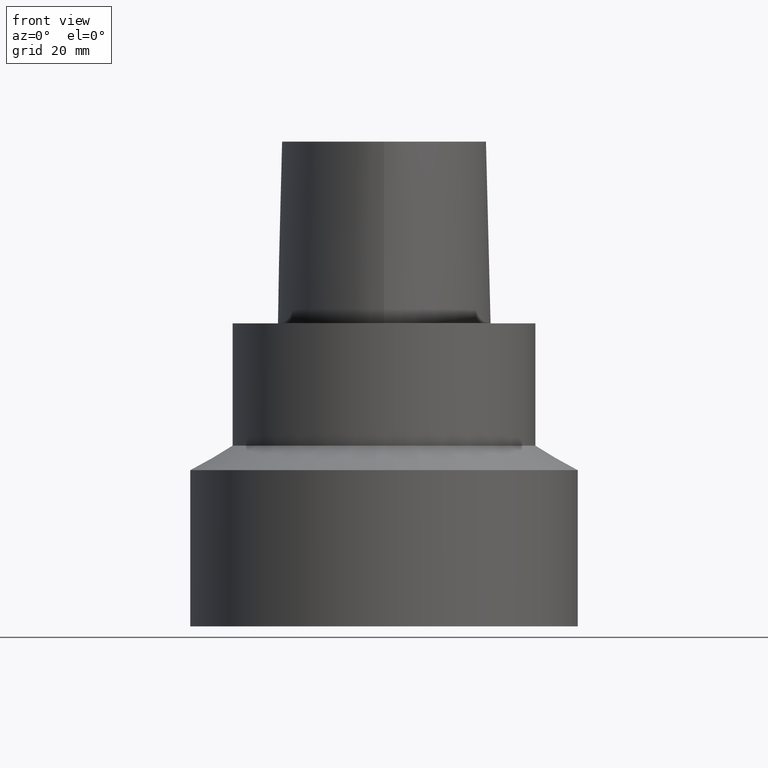
[diagram: clean part render]
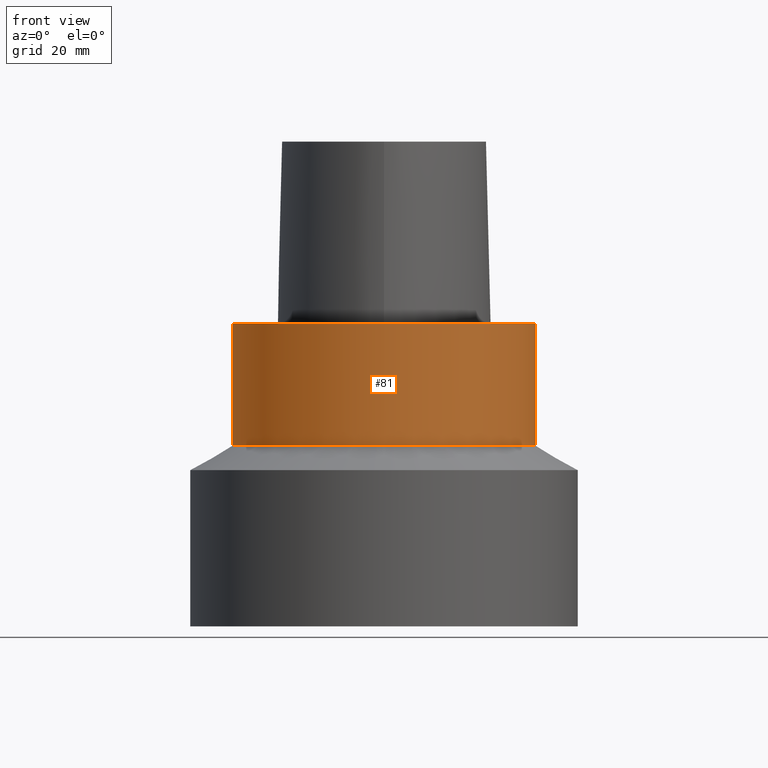
[diagram: same view with one face highlighted and labeled with its STEP entity id]
A machine part, front view. The second image highlights one B-rep face of the part: STEP entity #81.
In plain terms, the highlighted cylindrical surface (bore or boss wall) has radius 24.99 mm, axis along (-0, -0, 1).
Its self-contained STEP definition (entity closure, byte-faithful):
#81=ADVANCED_FACE('',(#98,#99),#100,.T.);
#98=FACE_BOUND('',#499,.T.);
#99=FACE_BOUND('',#500,.T.);
#100=CYLINDRICAL_SURFACE('',#501,24.99);
#499=EDGE_LOOP('',(#529));
#500=EDGE_LOOP('',(#530));
#501=AXIS2_PLACEMENT_3D('',#531,#532,#533);
#529=ORIENTED_EDGE('',*,*,#538,.F.);
#530=ORIENTED_EDGE('',*,*,#540,.T.);
#531=CARTESIAN_POINT('',(6.17626275744128E-016,1.23525255148826E-015,-10.08660254));
#532=DIRECTION('',(-6.12323399573677E-017,-1.22464679914735E-016,1.0));
#533=DIRECTION('',(-1.23259516440783E-032,1.0,1.22464679914735E-016));
#538=EDGE_CURVE('',#548,#548,#549,.T.);
#540=EDGE_CURVE('',#552,#552,#553,.T.);
#548=VERTEX_POINT('',#707);
#549=CIRCLE('',#708,24.99);
#552=VERTEX_POINT('',#711);
#553=CIRCLE('',#712,24.99);
#707=CARTESIAN_POINT('',(1.23525255148826E-015,24.99,-20.17320508));
#708=AXIS2_PLACEMENT_3D('',#716,#717,#718);
#711=CARTESIAN_POINT('',(-3.08025531585517E-031,24.99,3.06039235106923E-015));
#712=AXIS2_PLACEMENT_3D('',#722,#723,#724);
#716=CARTESIAN_POINT('',(1.23525255148826E-015,2.47050510297651E-015,-20.17320508));
#717=DIRECTION('',(6.12323399573677E-017,1.22464679914735E-016,-1.0));
#718=DIRECTION('',(-1.23259516440783E-032,1.0,1.22464679914735E-016));
#722=CARTESIAN_POINT('',(0.0,0.0,0.0));
#723=DIRECTION('',(6.12323399573677E-017,1.22464679914735E-016,-1.0));
#724=DIRECTION('',(-1.23259516440783E-032,1.0,1.22464679914735E-016));